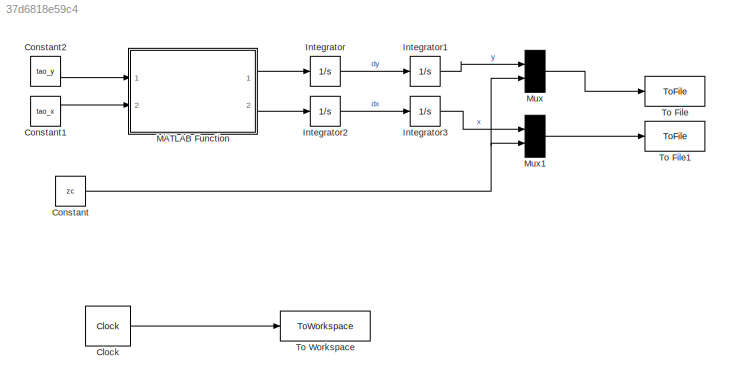
MODEL slx_37d6818e59c4
KIND model
CONFIG AbsTol = auto
CONFIG EnableMultiTasking = off
CONFIG FixedStep = auto
CONFIG MaxStep = auto
CONFIG MinStep = auto
CONFIG RelTol = 1e-3
CONFIG SampleTimeConstraint = Unconstrained
CONFIG SolverName = ode4
CONFIG StartTime = 0.0
CONFIG StopTime = t_stop
BLOCK [Clock] Clock
  DisplayTime = on
BLOCK [Constant] Constant
  Value = zc
BLOCK [Constant] Constant1
  Value = tao_x
BLOCK [Constant] Constant2
  Value = tao_y
BLOCK [Integrator] Integrator
  Ports = [1, 1]
BLOCK [Integrator] Integrator1
  Ports = [1, 1]
BLOCK [Integrator] Integrator2
  Ports = [1, 1]
BLOCK [Integrator] Integrator3
  Ports = [1, 1]
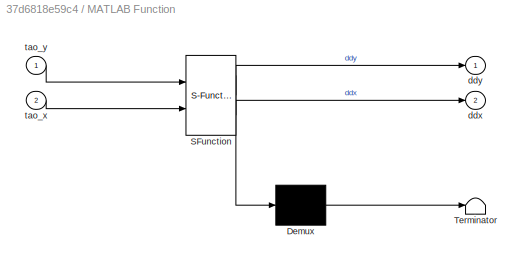
BLOCK [SubSystem] MATLAB Function
  ErrorFcn = Stateflow.Translate.translate
  PermitHierarchicalResolution = ExplicitOnly
  Ports = [2, 2]
  SFBlockType = MATLAB Function
  TreatAsAtomicUnit = on
BLOCK [Demux] MATLAB Function/ Demux 
  Outputs = 1
  Ports = [1, 1]
BLOCK [S-Function] MATLAB Function/ SFunction 
  EnableBusSupport = on
  FunctionName = sf_sfun
  PortCounts = [2 3]
  Ports = [2, 3]
  SFcnIsStateOwnerBlock = off
  SFunctionDeploymentMode = off
  Tag = Stateflow S-Function 2
BLOCK [Terminator] MATLAB Function/ Terminator 
BLOCK [Outport] MATLAB Function/ddx
  Port = 2
BLOCK [Outport] MATLAB Function/ddy
BLOCK [Inport] MATLAB Function/tao_x
  Port = 2
BLOCK [Inport] MATLAB Function/tao_y
BLOCK [Mux] Mux
  DisplayOption = bar
  Inputs = 2
  Ports = [2, 1]
BLOCK [Mux] Mux1
  DisplayOption = bar
  Inputs = 2
  Ports = [2, 1]
BLOCK [ToFile] To File
  Filename = output.m
  Ports = [1]
  SaveFormat = Timeseries
BLOCK [ToFile] To File1
  Filename = output.m
  Ports = [1]
  SaveFormat = Timeseries
BLOCK [ToWorkspace] To Workspace
  FixptAsFi = on
  MaxDataPoints = inf
  Ports = [1]
  SampleTime = -1
  SaveFormat = Timeseries
  VariableName = simout
LINE Clock:1 -> To Workspace:1
LINE Constant1:1 -> MATLAB Function:2
LINE Constant2:1 -> MATLAB Function:1
NET Constant:1 -> Mux1:2, Mux:2
LINE Integrator1:1 -> Mux:1
LINE Integrator2:1 -> Integrator3:1
LINE Integrator3:1 -> Mux1:1
LINE Integrator:1 -> Integrator1:1
LINE MATLAB Function:1 -> Integrator:1
LINE MATLAB Function:2 -> Integrator2:1
LINE Mux1:1 -> To File1:1
LINE Mux:1 -> To File:1
note: NET lines group one-source signal fan-out (src -> all destinations, sorted); 1:1 wires keep LINE
CHART MATLAB Function states=1 transitions=1
  STATE_LABEL 'eML_blk_kernel()'
  STATE_LABEL 'SCRIPT:\nfunction [ddy,ddx] = fcn(tao_y,tao_x)\nddy= ((g/zc)*y - (1/(m*zc))*tao_y);\nddx= ((g/zc)*x + (1/(m*zc))*tao_x);\n'
CHART  states=0 transitions=0
